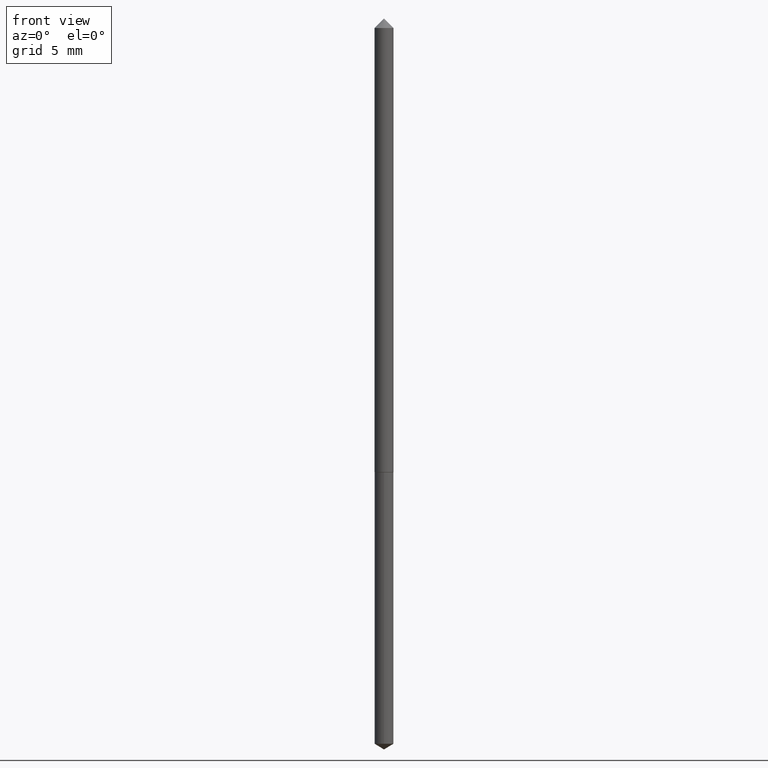
[diagram: clean part render]
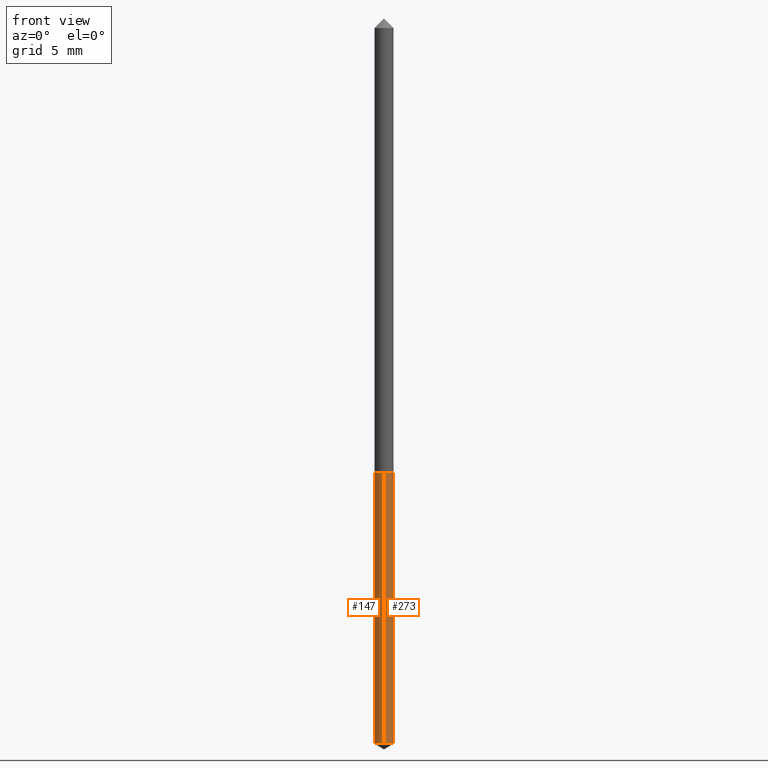
[diagram: same view with one multi-face feature highlighted, each face labeled with its STEP entity id]
A machine part, front view. The highlighted faces form ONE feature: a constant-radius fillet chain: 2 tangent blend faces with common blend radius 0.4064 mm. The faces share edges in the B-rep.
Their STEP definitions:
[1] entity #147 (Cylinder):
#1 = VECTOR ( 'NONE', #229, 39.37007874015748143 ) ;
#13 = DIRECTION ( 'NONE',  ( -2.445503149551996955E-29, 3.491432157187098739E-15, 1.000000000000000000 ) ) ;
#31 = VERTEX_POINT ( 'NONE', #361 ) ;
#42 = CARTESIAN_POINT ( 'NONE',  ( 3.033341575846732105E-29, -4.330762831142738852E-15, -1.240386230095559039 ) ) ;
#45 = DIRECTION ( 'NONE',  ( -2.445503149551996955E-29, 3.491432157187098739E-15, 1.000000000000000000 ) ) ;
#48 = EDGE_CURVE ( 'NONE', #92, #321, #357, .T. ) ;
#51 = AXIS2_PLACEMENT_3D ( 'NONE', #71, #341, #174 ) ;
#52 = ORIENTED_EDGE ( 'NONE', *, *, #48, .T. ) ;
#70 = DIRECTION ( 'NONE',  ( -6.982962677686266711E-15, -1.000000000000000000, 0.000000000000000000 ) ) ;
#71 = CARTESIAN_POINT ( 'NONE',  ( 1.912356606436776888E-29, -2.730338406975340050E-15, -0.7820000000000000284 ) ) ;
#80 = ORIENTED_EDGE ( 'NONE', *, *, #109, .T. ) ;
#81 = ORIENTED_EDGE ( 'NONE', *, *, #253, .F. ) ;
#90 = ORIENTED_EDGE ( 'NONE', *, *, #261, .F. ) ;
#92 = VERTEX_POINT ( 'NONE', #177 ) ;
#105 = DIRECTION ( 'NONE',  ( -6.982962677686266711E-15, -1.000000000000000000, 0.000000000000000000 ) ) ;
#109 = EDGE_CURVE ( 'NONE', #31, #92, #217, .T. ) ;
#111 = CARTESIAN_POINT ( 'NONE',  ( -1.117274028429611414E-16, -0.01600000000000273079, -0.7820000000000000284 ) ) ;
#147 = ADVANCED_FACE ( 'NONE', ( #176 ), #201, .T. ) ;
#174 = DIRECTION ( 'NONE',  ( -6.982962677686266711E-15, -1.000000000000000000, 0.000000000000000000 ) ) ;
#176 = FACE_OUTER_BOUND ( 'NONE', #364, .T. ) ;
#177 = CARTESIAN_POINT ( 'NONE',  ( -1.117274028429499248E-16, -0.01600000000000433020, -1.240386230095559039 ) ) ;
#196 = LINE ( 'NONE', #309, #1 ) ;
#200 = DIRECTION ( 'NONE',  ( -2.445503149551996955E-29, 3.491432157187098739E-15, 1.000000000000000000 ) ) ;
#201 = CYLINDRICAL_SURFACE ( 'NONE', #51, 0.01600000000000000033 ) ;
#217 = CIRCLE ( 'NONE', #244, 0.01600000000000000033 ) ;
#226 = CARTESIAN_POINT ( 'NONE',  ( 1.136868377216464526E-16, 0.01599999999999726988, -0.7820000000000000284 ) ) ;
#229 = DIRECTION ( 'NONE',  ( -2.445503149551996955E-29, 3.491432157187098739E-15, 1.000000000000000000 ) ) ;
#232 = CARTESIAN_POINT ( 'NONE',  ( -1.117274028429611414E-16, -0.01600000000000273079, -0.7820000000000000284 ) ) ;
#244 = AXIS2_PLACEMENT_3D ( 'NONE', #42, #200, #70 ) ;
#247 = VERTEX_POINT ( 'NONE', #226 ) ;
#253 = EDGE_CURVE ( 'NONE', #31, #247, #196, .T. ) ;
#261 = EDGE_CURVE ( 'NONE', #247, #321, #327, .T. ) ;
#266 = AXIS2_PLACEMENT_3D ( 'NONE', #317, #45, #105 ) ;
#286 = VECTOR ( 'NONE', #13, 39.37007874015748143 ) ;
#309 = CARTESIAN_POINT ( 'NONE',  ( 1.136868377216351373E-16, 0.01599999999999726988, -0.7820000000000000284 ) ) ;
#317 = CARTESIAN_POINT ( 'NONE',  ( 1.912356606436776888E-29, -2.730338406975340050E-15, -0.7820000000000000284 ) ) ;
#321 = VERTEX_POINT ( 'NONE', #111 ) ;
#327 = CIRCLE ( 'NONE', #266, 0.01600000000000000033 ) ;
#341 = DIRECTION ( 'NONE',  ( -2.445503149551996955E-29, 3.491432157187098739E-15, 1.000000000000000000 ) ) ;
#357 = LINE ( 'NONE', #232, #286 ) ;
#361 = CARTESIAN_POINT ( 'NONE',  ( 1.136868377216463539E-16, 0.01599999999999566699, -1.240386230095559039 ) ) ;
#364 = EDGE_LOOP ( 'NONE', ( #81, #80, #52, #90 ) ) ;
[2] entity #273 (Cylinder):
#1 = VECTOR ( 'NONE', #229, 39.37007874015748143 ) ;
#11 = DIRECTION ( 'NONE',  ( -6.982962677686266711E-15, -1.000000000000000000, 0.000000000000000000 ) ) ;
#13 = DIRECTION ( 'NONE',  ( -2.445503149551996955E-29, 3.491432157187098739E-15, 1.000000000000000000 ) ) ;
#27 = CIRCLE ( 'NONE', #108, 0.01600000000000000033 ) ;
#31 = VERTEX_POINT ( 'NONE', #361 ) ;
#38 = AXIS2_PLACEMENT_3D ( 'NONE', #269, #106, #84 ) ;
#48 = EDGE_CURVE ( 'NONE', #92, #321, #357, .T. ) ;
#72 = DIRECTION ( 'NONE',  ( -2.445503149551996955E-29, 3.491432157187098739E-15, 1.000000000000000000 ) ) ;
#73 = CIRCLE ( 'NONE', #218, 0.01600000000000000033 ) ;
#84 = DIRECTION ( 'NONE',  ( -6.982962677686266711E-15, -1.000000000000000000, 0.000000000000000000 ) ) ;
#92 = VERTEX_POINT ( 'NONE', #177 ) ;
#106 = DIRECTION ( 'NONE',  ( -2.445503149551996955E-29, 3.491432157187098739E-15, 1.000000000000000000 ) ) ;
#108 = AXIS2_PLACEMENT_3D ( 'NONE', #312, #72, #11 ) ;
#111 = CARTESIAN_POINT ( 'NONE',  ( -1.117274028429611414E-16, -0.01600000000000273079, -0.7820000000000000284 ) ) ;
#123 = EDGE_CURVE ( 'NONE', #321, #247, #27, .T. ) ;
#133 = CYLINDRICAL_SURFACE ( 'NONE', #38, 0.01600000000000000033 ) ;
#177 = CARTESIAN_POINT ( 'NONE',  ( -1.117274028429499248E-16, -0.01600000000000433020, -1.240386230095559039 ) ) ;
#196 = LINE ( 'NONE', #309, #1 ) ;
#212 = CARTESIAN_POINT ( 'NONE',  ( 3.033341575846732105E-29, -4.330762831142738852E-15, -1.240386230095559039 ) ) ;
#218 = AXIS2_PLACEMENT_3D ( 'NONE', #212, #322, #354 ) ;
#226 = CARTESIAN_POINT ( 'NONE',  ( 1.136868377216464526E-16, 0.01599999999999726988, -0.7820000000000000284 ) ) ;
#229 = DIRECTION ( 'NONE',  ( -2.445503149551996955E-29, 3.491432157187098739E-15, 1.000000000000000000 ) ) ;
#232 = CARTESIAN_POINT ( 'NONE',  ( -1.117274028429611414E-16, -0.01600000000000273079, -0.7820000000000000284 ) ) ;
#247 = VERTEX_POINT ( 'NONE', #226 ) ;
#249 = ORIENTED_EDGE ( 'NONE', *, *, #48, .F. ) ;
#253 = EDGE_CURVE ( 'NONE', #31, #247, #196, .T. ) ;
#269 = CARTESIAN_POINT ( 'NONE',  ( 1.912356606436776888E-29, -2.730338406975340050E-15, -0.7820000000000000284 ) ) ;
#273 = ADVANCED_FACE ( 'NONE', ( #292 ), #133, .T. ) ;
#286 = VECTOR ( 'NONE', #13, 39.37007874015748143 ) ;
#292 = FACE_OUTER_BOUND ( 'NONE', #335, .T. ) ;
#306 = ORIENTED_EDGE ( 'NONE', *, *, #342, .T. ) ;
#309 = CARTESIAN_POINT ( 'NONE',  ( 1.136868377216351373E-16, 0.01599999999999726988, -0.7820000000000000284 ) ) ;
#312 = CARTESIAN_POINT ( 'NONE',  ( 1.912356606436776888E-29, -2.730338406975340050E-15, -0.7820000000000000284 ) ) ;
#319 = ORIENTED_EDGE ( 'NONE', *, *, #123, .F. ) ;
#321 = VERTEX_POINT ( 'NONE', #111 ) ;
#322 = DIRECTION ( 'NONE',  ( -2.445503149551996955E-29, 3.491432157187098739E-15, 1.000000000000000000 ) ) ;
#335 = EDGE_LOOP ( 'NONE', ( #306, #352, #319, #249 ) ) ;
#342 = EDGE_CURVE ( 'NONE', #92, #31, #73, .T. ) ;
#352 = ORIENTED_EDGE ( 'NONE', *, *, #253, .T. ) ;
#354 = DIRECTION ( 'NONE',  ( -6.982962677686266711E-15, -1.000000000000000000, 0.000000000000000000 ) ) ;
#357 = LINE ( 'NONE', #232, #286 ) ;
#361 = CARTESIAN_POINT ( 'NONE',  ( 1.136868377216463539E-16, 0.01599999999999566699, -1.240386230095559039 ) ) ;